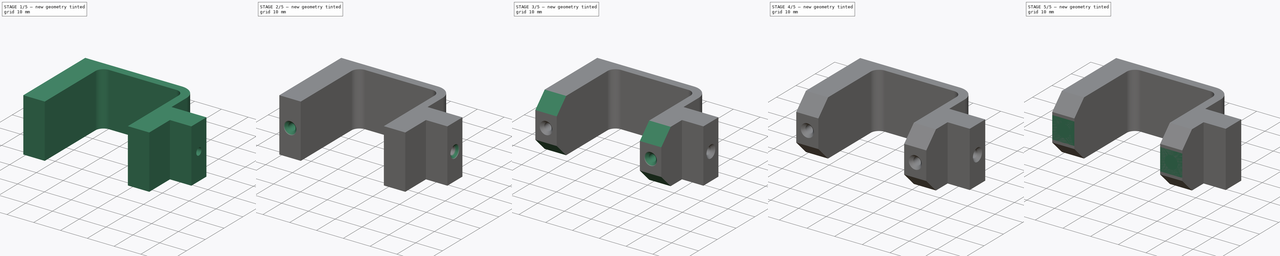
[diagram: build sequence overview — one tinted view per stage of 5, left to right]
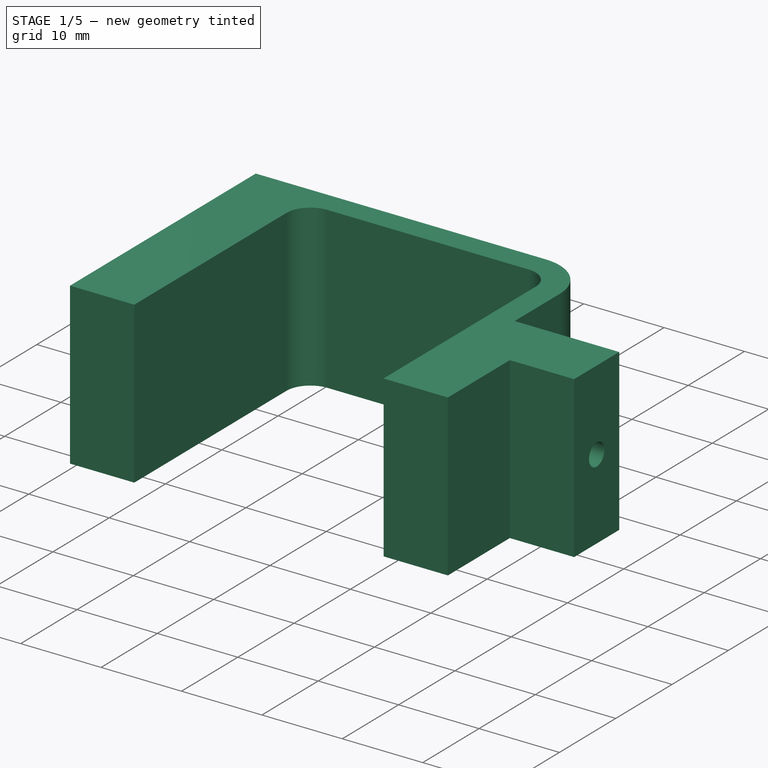
[diagram: stage 1 of 5 — iso view after this stage's code; geometry added in this stage tinted green]
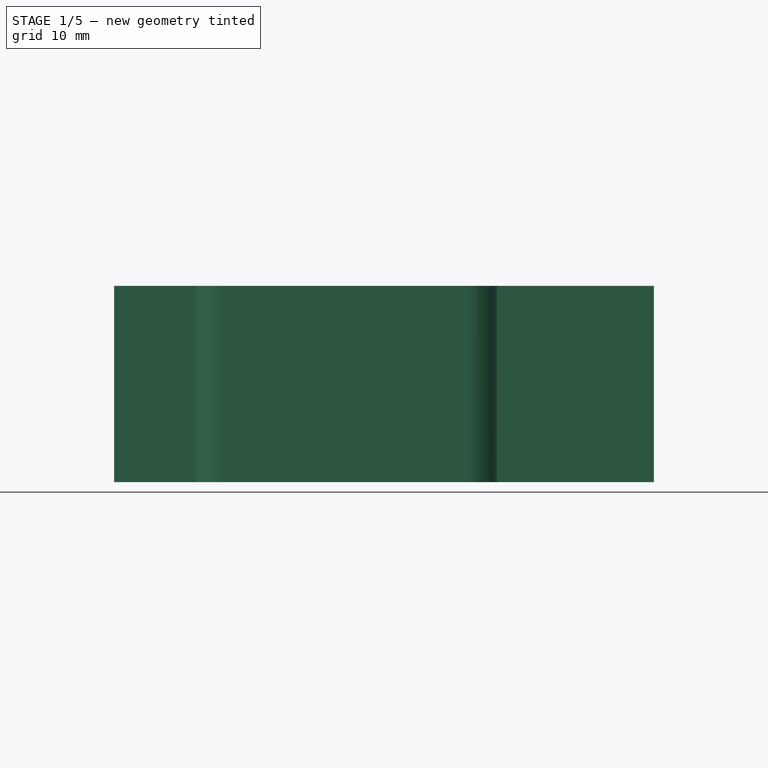
[diagram: stage 1 of 5 — front view after this stage's code; geometry added in this stage tinted green]
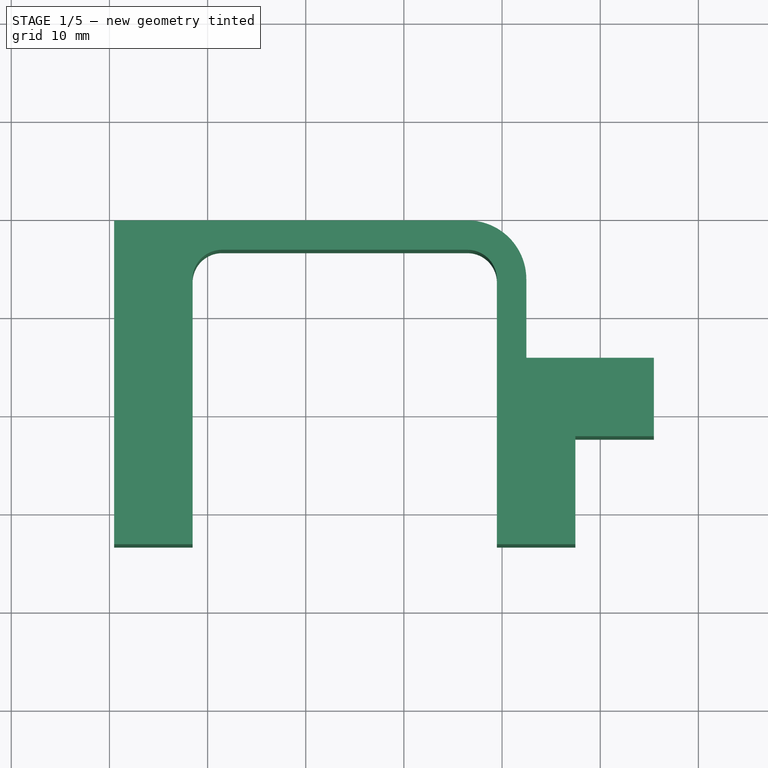
[diagram: stage 1 of 5 — top view after this stage's code; geometry added in this stage tinted green]
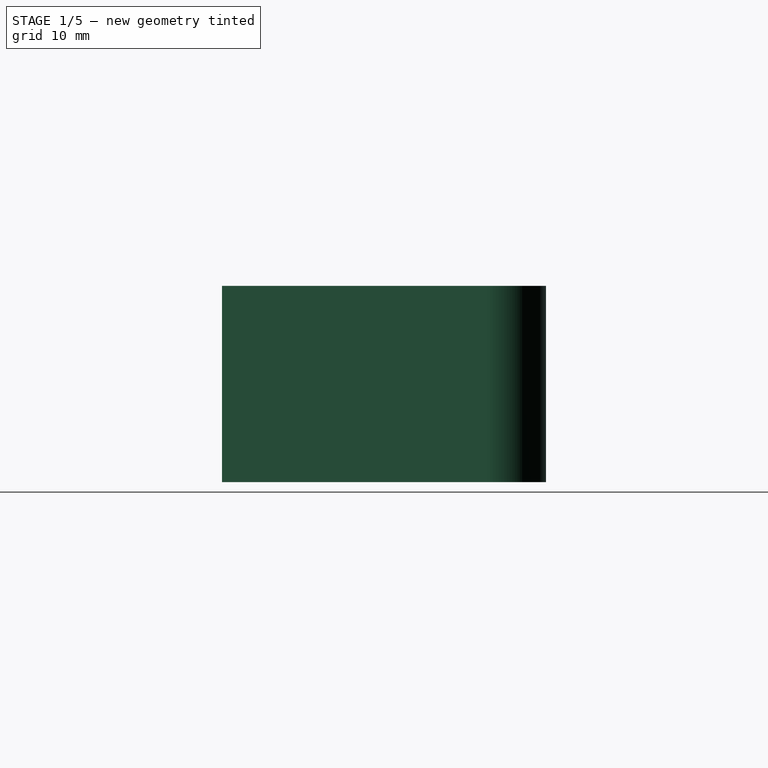
[diagram: stage 1 of 5 — right view after this stage's code; geometry added in this stage tinted green]
FCSTD DOCUMENT  (FreeCAD 0.16R6712 (Git))
Label: portapilas_enganche
License: All rights reserved
LicenseURL: http://en.wikipedia.org/wiki/All_rights_reserved
objects: Sketcher::SketchObject×8, PartDesign::Chamfer×6, PartDesign::Fillet×5, PartDesign::Pocket×5, PartDesign::Pad×2
note: 33 computed .brp shape members not serialized (recipe doc carries the construction recipe); baked Part::Feature solids carry a one-line shape summary decoded from their .brp

FEATURE [Sketcher::SketchObject] Sketch  label="boceto_principal"
  sketch-geometry (12):
    g0: LineSegment StartX=-19.5286 StartY=-13.3495 StartZ=0 EndX=-19.5286 EndY=19.6505 EndZ=0
    g1: LineSegment StartX=-19.5286 StartY=19.6505 StartZ=0 EndX=22.4714 EndY=19.6505 EndZ=0
    g2: LineSegment StartX=22.4714 StartY=19.6505 StartZ=0 EndX=22.4714 EndY=5.65051 EndZ=0
    g3: LineSegment StartX=22.4714 StartY=5.65051 StartZ=0 EndX=35.4714 EndY=5.65051 EndZ=0
    g4: LineSegment StartX=35.4714 StartY=5.65051 StartZ=0 EndX=35.4714 EndY=-2.34949 EndZ=0
    g5: LineSegment StartX=35.4714 StartY=-2.34949 StartZ=0 EndX=27.4714 EndY=-2.34949 EndZ=0
    g6: LineSegment StartX=27.4714 StartY=-2.34949 StartZ=0 EndX=27.4714 EndY=-13.3495 EndZ=0
    g7: LineSegment StartX=27.4714 StartY=-13.3495 StartZ=0 EndX=19.4714 EndY=-13.3495 EndZ=0
    g8: LineSegment StartX=19.4714 StartY=-13.3495 StartZ=0 EndX=19.4714 EndY=16.6505 EndZ=0
    g9: LineSegment StartX=-19.5286 StartY=-13.3495 StartZ=0 EndX=-11.5286 EndY=-13.3495 EndZ=0
    g10: LineSegment StartX=-11.5286 StartY=-13.3495 StartZ=0 EndX=-11.5286 EndY=16.6505 EndZ=0
    g11: LineSegment StartX=-11.5286 StartY=16.6505 StartZ=0 EndX=19.4714 EndY=16.6505 EndZ=0
  constraints (35):
    c: Vertical(g0)
    c: Coincident(g0,g1)
    c: Horizontal(g1)
    c: Coincident(g1,g2)
    c: Vertical(g2)
    c: Coincident(g2,g3)
    c: Horizontal(g3)
    c: Coincident(g3,g4)
    c: Vertical(g4)
    c: Coincident(g4,g5)
    c: Horizontal(g5)
    c: Coincident(g5,g6)
    c: Vertical(g6)
    c: DistanceY(g0,g0) = 33
    c: DistanceX(g1,g1) = 42
    c: DistanceY(g2,g2) = 14
    c: DistanceX(g3,g3) = 13
    c: DistanceY(g4,g4) = 8
    c: DistanceX(g5,g5) = 8
    c: DistanceY(g6,g6) = 11
    c: Horizontal(g7)
    c: DistanceX(g7,g7) = 8
    c: Coincident(g7,g6)
    c: Vertical(g8)
    c: DistanceY(g8,g8) = 30
    c: Coincident(g8,g7)
    c: Horizontal(g9)
    c: DistanceX(g9,g9) = 8
    c: Coincident(g9,g0)
    c: Vertical(g10)
    c: DistanceY(g10,g10) = 30
    c: Coincident(g10,g9)
    c: Horizontal(g11)
    c: DistanceX(g11,g11) = 31
    c: Coincident(g11,g10)
FEATURE [PartDesign::Pad] Pad
  Length = 20
  Length2 = 100
  Sketch = -> Sketch
  Type = 0
FEATURE [PartDesign::Fillet] Fillet
  Base = -> Pad [Edge29,Edge26]
  Radius = 3
FEATURE [PartDesign::Fillet] Fillet001
  Base = -> Fillet [Edge42]
  Radius = 6
FEATURE [Sketcher::SketchObject] Sketch001
  Placement = pos=(0,-13.3495,0) rot=(1,0,0;1.5708rad)
  Support = -> Chamfer [Face17]
  sketch-geometry (2):
    g0: LineSegment [constr] StartX=-19.5094 StartY=13.9117 StartZ=0 EndX=-11.5679 EndY=6.02775 EndZ=0
    g1: Circle CenterX=-16.4594 CenterY=9.59567 CenterZ=0 NormalX=0 NormalY=0 NormalZ=1 Radius=0.540607
FEATURE [Sketcher::SketchObject] Sketch002
  ExternalGeometry = -> [Fillet001]
  Placement = pos=(35.4714,0,0) rot=(0.57735,0.57735,0.57735;2.0944rad)
  Support = -> Fillet001 [Face6]
  sketch-geometry (1):
    g0: Circle CenterX=1.65051 CenterY=10 CenterZ=0 NormalX=0 NormalY=0 NormalZ=1 Radius=1.36
  constraints (3):
    c: Radius(g0) = 1.36
    c: DistanceY(g0,g-4) = 10
    c: DistanceX(g-4,g0) = 4
FEATURE [PartDesign::Pocket] Pocket
  Length = 4
  Sketch = -> Sketch002
  Type = 0
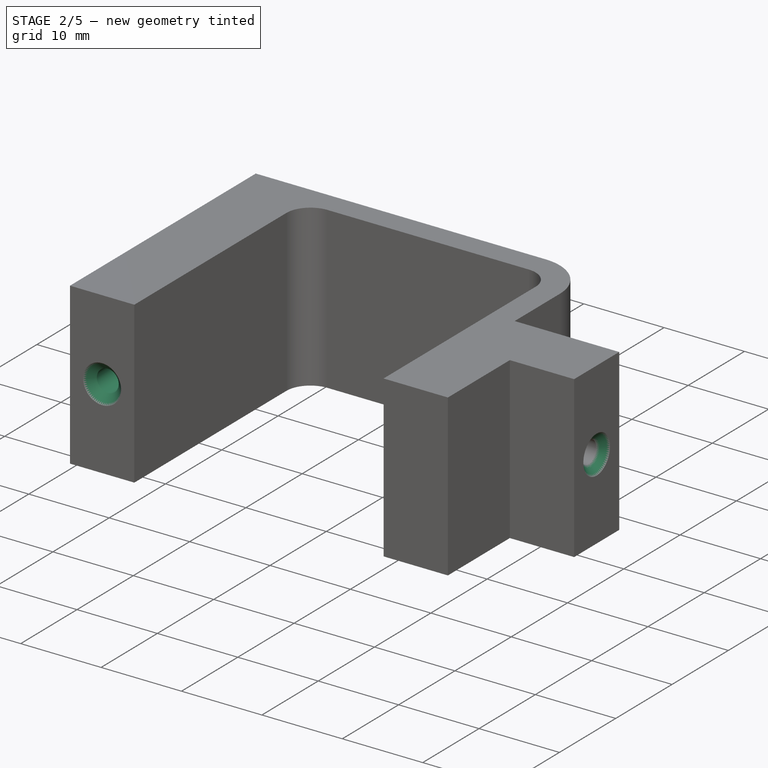
[diagram: stage 2 of 5 — iso view after this stage's code; geometry added in this stage tinted green]
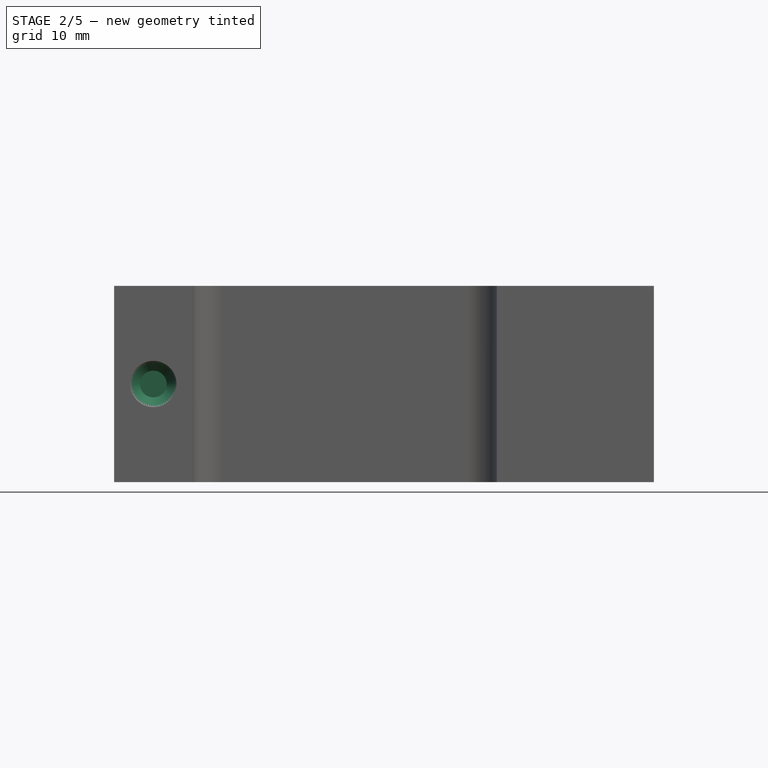
[diagram: stage 2 of 5 — front view after this stage's code; geometry added in this stage tinted green]
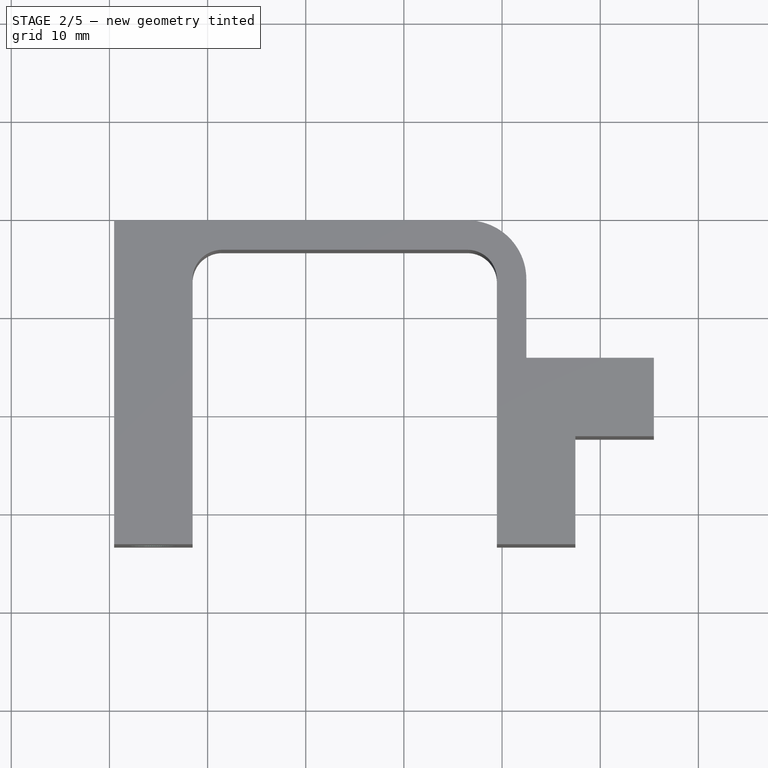
[diagram: stage 2 of 5 — top view after this stage's code; geometry added in this stage tinted green]
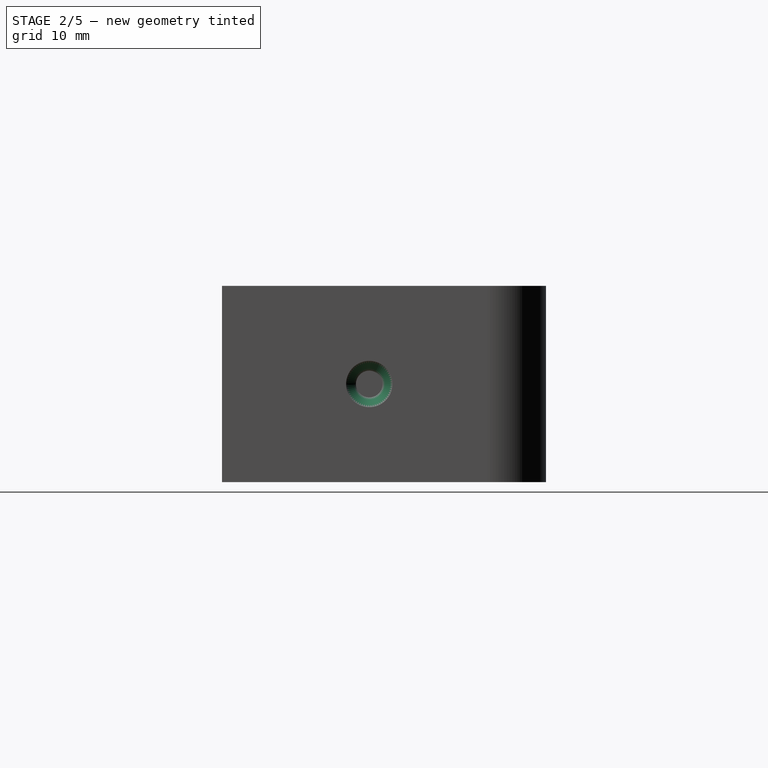
[diagram: stage 2 of 5 — right view after this stage's code; geometry added in this stage tinted green]
FEATURE [PartDesign::Chamfer] Chamfer001
  Base = -> Pocket [Edge27]
  Size = 1
FEATURE [Sketcher::SketchObject] Sketch003
  ExternalGeometry = -> [Chamfer001]
  Placement = pos=(0,-13.3495,0) rot=(1,0,0;1.5708rad)
  Support = -> Chamfer001 [Face15]
  sketch-geometry (1):
    g0: Circle CenterX=-15.5286 CenterY=10 CenterZ=0 NormalX=0 NormalY=0 NormalZ=1 Radius=1.36
  constraints (3):
    c: Radius(g0) = 1.36
    c: DistanceY(g0,g-4) = 10
    c: DistanceX(g-4,g0) = 4
FEATURE [PartDesign::Pocket] Pocket001
  Length = 4
  Sketch = -> Sketch003
  Type = 0
FEATURE [PartDesign::Chamfer] Chamfer002
  Base = -> Pocket001 [Edge45]
  Size = 1
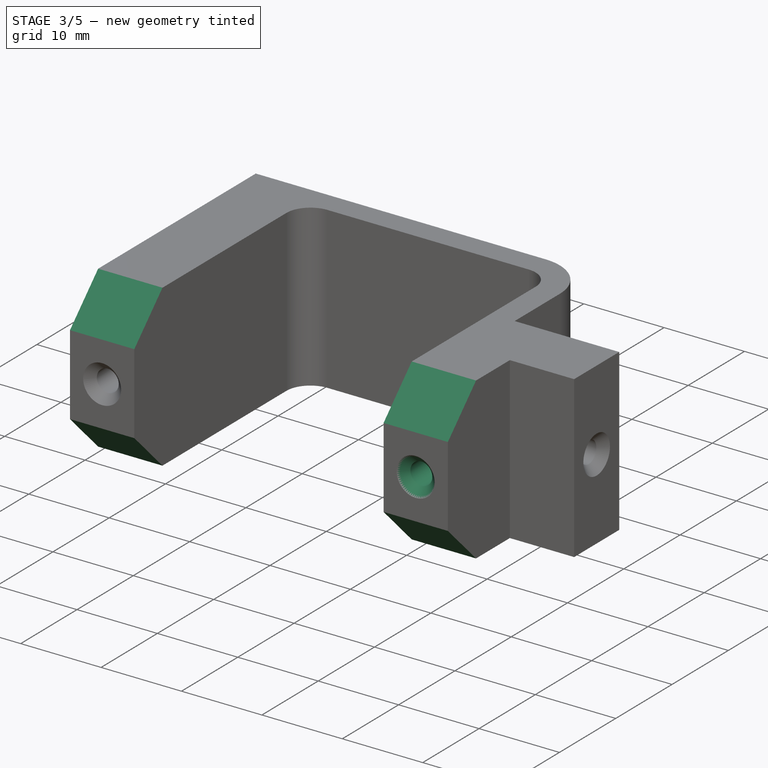
[diagram: stage 3 of 5 — iso view after this stage's code; geometry added in this stage tinted green]
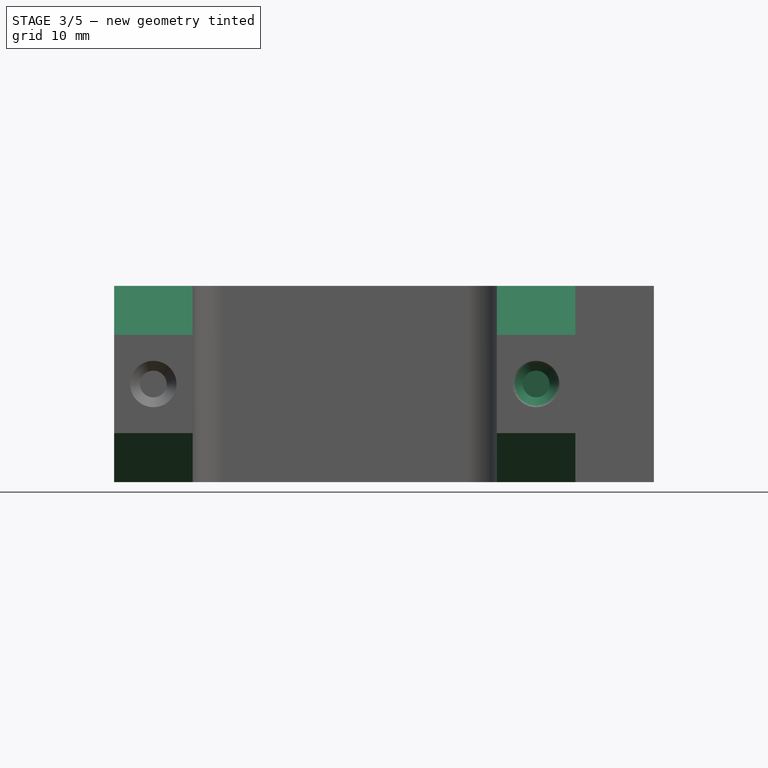
[diagram: stage 3 of 5 — front view after this stage's code; geometry added in this stage tinted green]
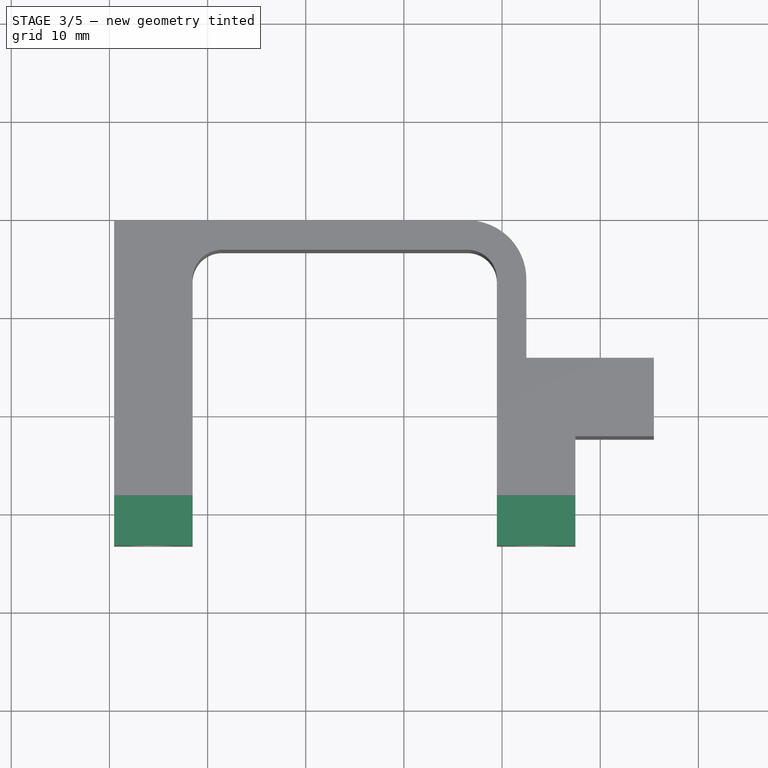
[diagram: stage 3 of 5 — top view after this stage's code; geometry added in this stage tinted green]
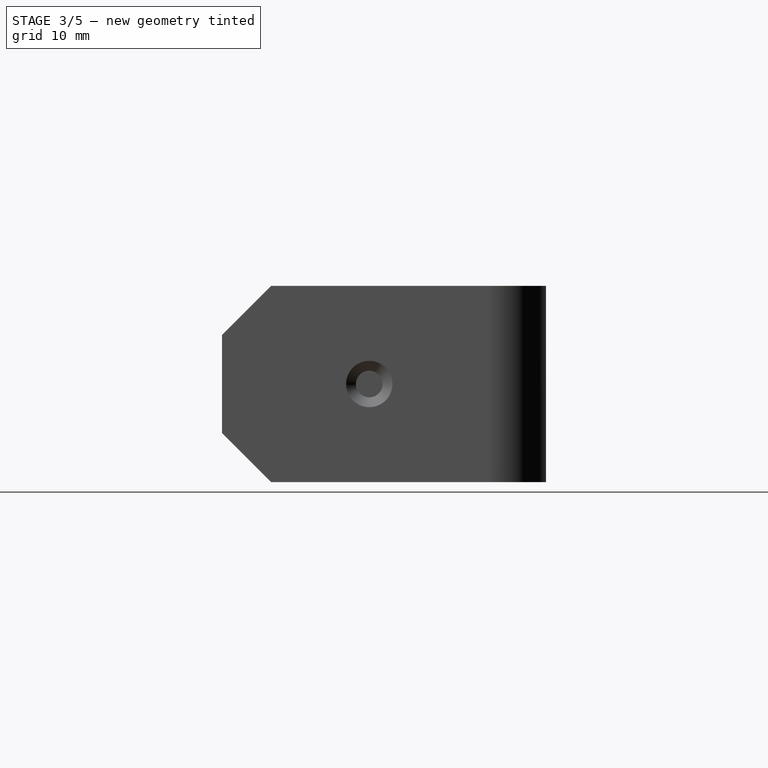
[diagram: stage 3 of 5 — right view after this stage's code; geometry added in this stage tinted green]
FEATURE [Sketcher::SketchObject] Sketch004
  ExternalGeometry = -> [Chamfer002]
  Placement = pos=(0,-13.3495,0) rot=(1,0,0;1.5708rad)
  Support = -> Chamfer002 [Face15]
  sketch-geometry (1):
    g0: Circle CenterX=23.4714 CenterY=10 CenterZ=0 NormalX=0 NormalY=0 NormalZ=1 Radius=1.36
  constraints (3):
    c: Radius(g0) = 1.36
    c: DistanceY(g0,g-4) = 10
    c: DistanceX(g-4,g0) = 4
FEATURE [PartDesign::Pocket] Pocket002
  Length = 4
  Sketch = -> Sketch004
  Type = 0
FEATURE [PartDesign::Chamfer] Chamfer003
  Base = -> Pocket002 [Edge49]
  Size = 1
FEATURE [PartDesign::Chamfer] Chamfer004
  Base = -> Chamfer003 [Edge31,Edge18,Edge4,Edge3]
  Size = 5
FEATURE [Sketcher::SketchObject] Sketch005
  ExternalGeometry = -> [Chamfer004]
  Placement = pos=(0,19.6505,0) rot=(0,0.707107,0.707107;3.14159rad)
  Support = -> Chamfer004 [Face14]
  sketch-geometry (1):
    g0: Circle CenterX=15.5286 CenterY=10 CenterZ=0 NormalX=0 NormalY=0 NormalZ=1 Radius=1.36
  constraints (3):
    c: Radius(g0) = 1.36
    c: DistanceX(g0,g-4) = 4
    c: DistanceY(g0,g-4) = 10
FEATURE [PartDesign::Pocket] Pocket003
  Length = 4
  Sketch = -> Sketch005
  Type = 0
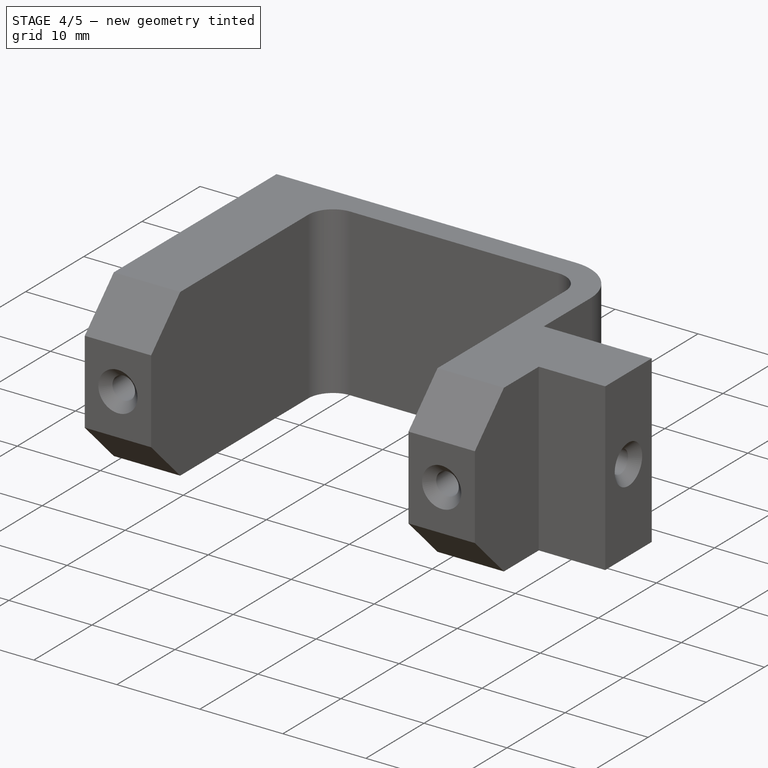
[diagram: stage 4 of 5 — iso view after this stage's code; geometry added in this stage tinted green]
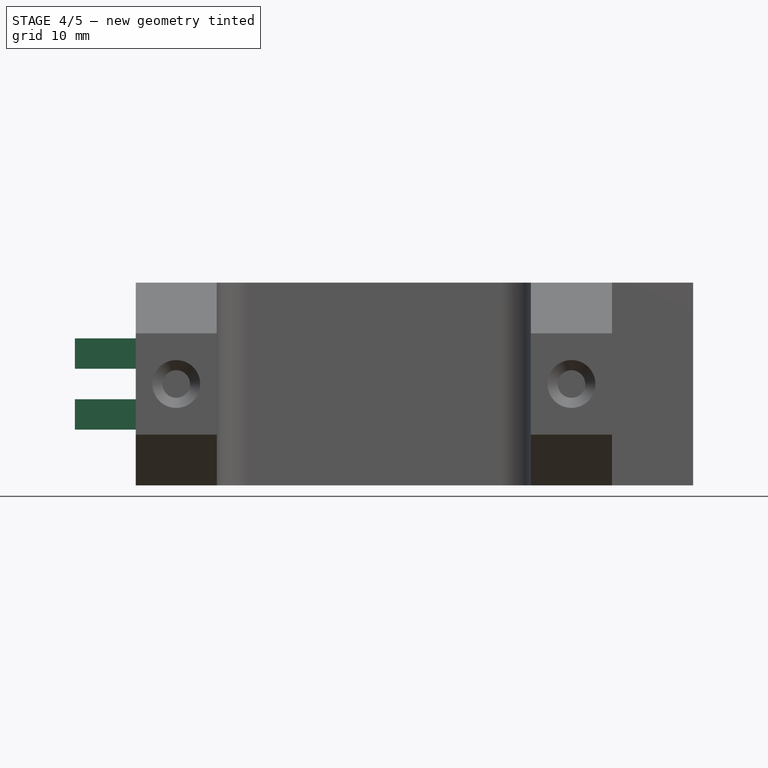
[diagram: stage 4 of 5 — front view after this stage's code; geometry added in this stage tinted green]
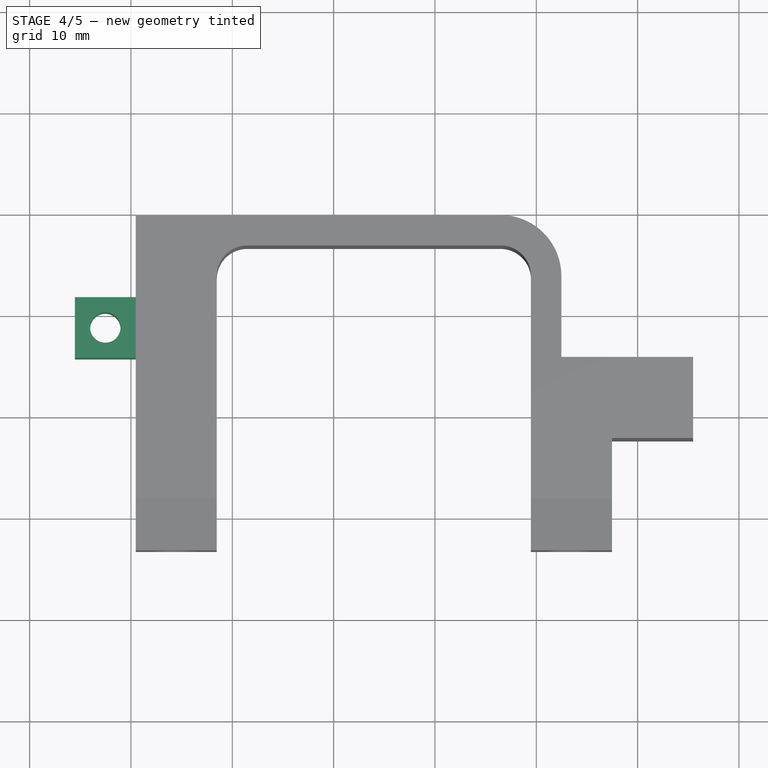
[diagram: stage 4 of 5 — top view after this stage's code; geometry added in this stage tinted green]
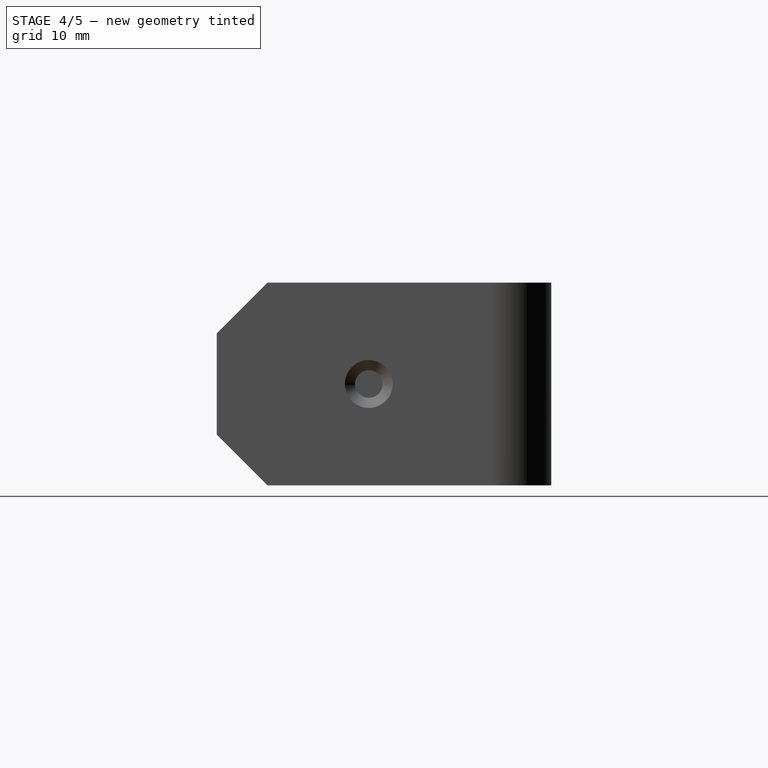
[diagram: stage 4 of 5 — right view after this stage's code; geometry added in this stage tinted green]
FEATURE [PartDesign::Chamfer] Chamfer005
  Base = -> Pocket003 [Edge55]
  Size = 1
FEATURE [Sketcher::SketchObject] Sketch006
  ExternalGeometry = -> [Chamfer005]
  Placement = pos=(-19.5286,0,0) rot=(0.57735,-0.57735,-0.57735;2.0944rad)
  Support = -> Chamfer005 [Face5]
  sketch-geometry (8):
    g0: LineSegment StartX=-11.6505 StartY=14.5 StartZ=0 EndX=-5.65051 EndY=14.5 EndZ=0
    g1: LineSegment StartX=-5.65051 StartY=14.5 StartZ=0 EndX=-5.65051 EndY=11.5 EndZ=0
    g2: LineSegment StartX=-5.65051 StartY=11.5 StartZ=0 EndX=-11.6505 EndY=11.5 EndZ=0
    g3: LineSegment StartX=-11.6505 StartY=11.5 StartZ=0 EndX=-11.6505 EndY=14.5 EndZ=0
    g4: LineSegment StartX=-11.6505 StartY=8.5 StartZ=0 EndX=-5.65051 EndY=8.5 EndZ=0
    g5: LineSegment StartX=-5.65051 StartY=8.5 StartZ=0 EndX=-5.65051 EndY=5.5 EndZ=0
    g6: LineSegment StartX=-5.65051 StartY=5.5 StartZ=0 EndX=-11.6505 EndY=5.5 EndZ=0
    g7: LineSegment StartX=-11.6505 StartY=5.5 StartZ=0 EndX=-11.6505 EndY=8.5 EndZ=0
  constraints (24):
    c: Coincident(g0,g1)
    c: Coincident(g1,g2)
    c: Coincident(g2,g3)
    c: Coincident(g3,g0)
    c: Horizontal(g0)
    c: Horizontal(g2)
    c: Vertical(g1)
    c: Vertical(g3)
    c: Coincident(g4,g5)
    c: Coincident(g5,g6)
    c: Coincident(g6,g7)
    c: Coincident(g7,g4)
    c: Horizontal(g4)
    c: Horizontal(g6)
    c: Vertical(g5)
    c: Vertical(g7)
    c: DistanceX(g0,g0) = 6
    c: DistanceY(g1,g1) = 3
    c: DistanceX(g4,g4) = 6
    c: DistanceY(g5,g5) = 3
    c: DistanceX(g-4,g0) = 8
    c: DistanceY(g0,g-4) = 5.5
    c: DistanceX(g-4,g6) = 8
    c: DistanceY(g-4,g6) = 5.5
FEATURE [PartDesign::Pad] Pad001
  Length = 6
  Length2 = 100
  Sketch = -> Sketch006
  Type = 0
FEATURE [Sketcher::SketchObject] Sketch007
  ExternalGeometry = -> [Pad001]
  Placement = pos=(0,0,14.5) rot=(0,0,1;0rad)
  Support = -> Pad001 [Face27]
  sketch-geometry (1):
    g0: Circle CenterX=-22.5286 CenterY=8.65051 CenterZ=0 NormalX=0 NormalY=0 NormalZ=1 Radius=1.5
  constraints (3):
    c: Radius(g0) = 1.5
    c: DistanceY(g0,g-4) = 3
    c: DistanceX(g-4,g0) = 3
FEATURE [PartDesign::Pocket] Pocket004
  Length = 5
  Sketch = -> Sketch007
  Type = 1
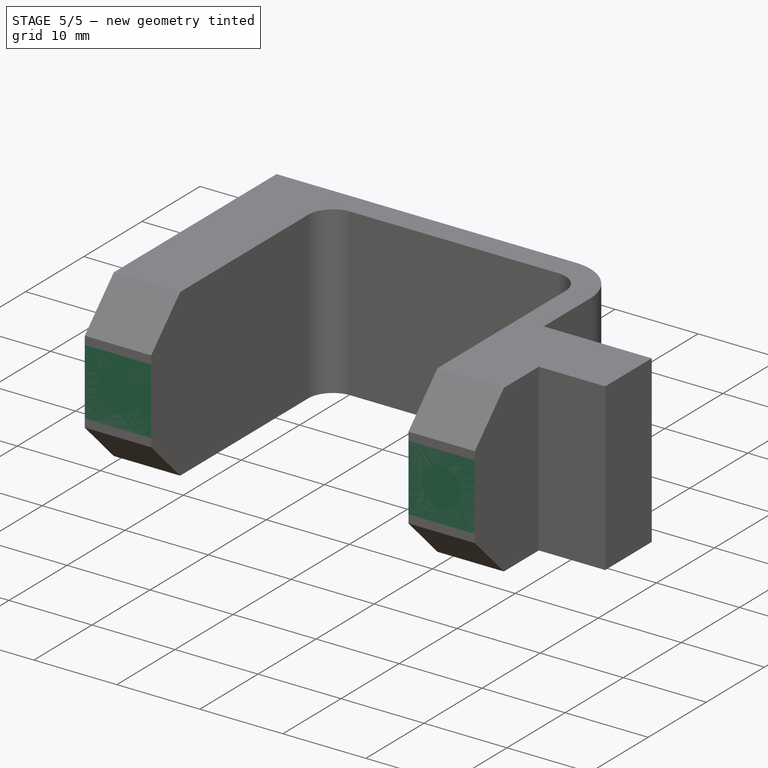
[diagram: stage 5 of 5 — iso view after this stage's code; geometry added in this stage tinted green]
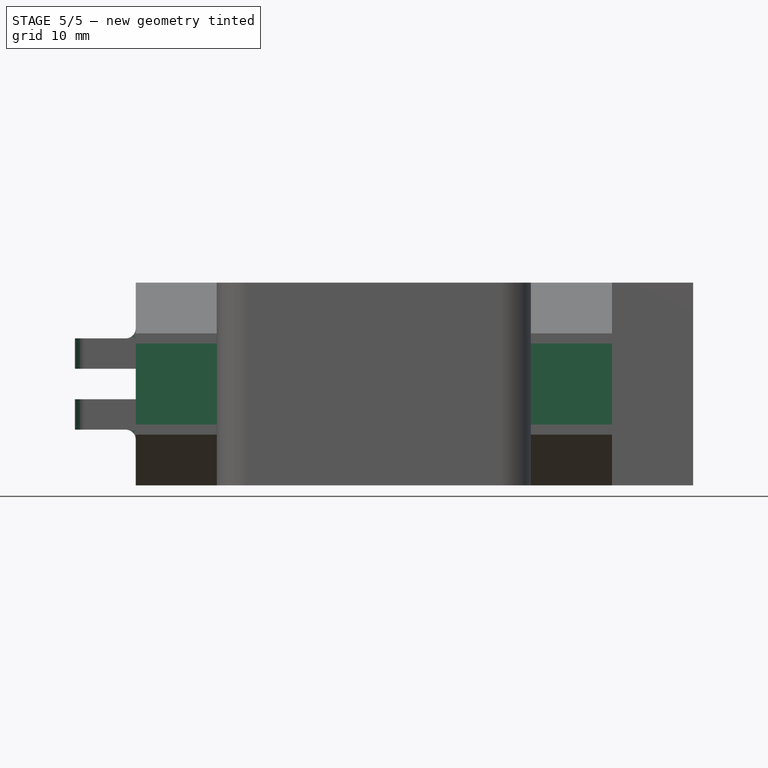
[diagram: stage 5 of 5 — front view after this stage's code; geometry added in this stage tinted green]
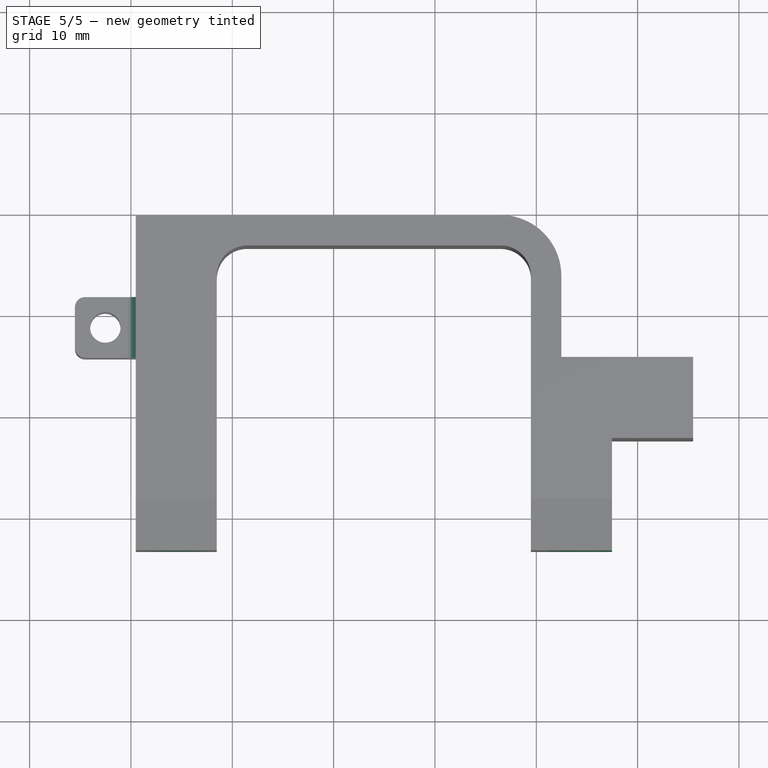
[diagram: stage 5 of 5 — top view after this stage's code; geometry added in this stage tinted green]
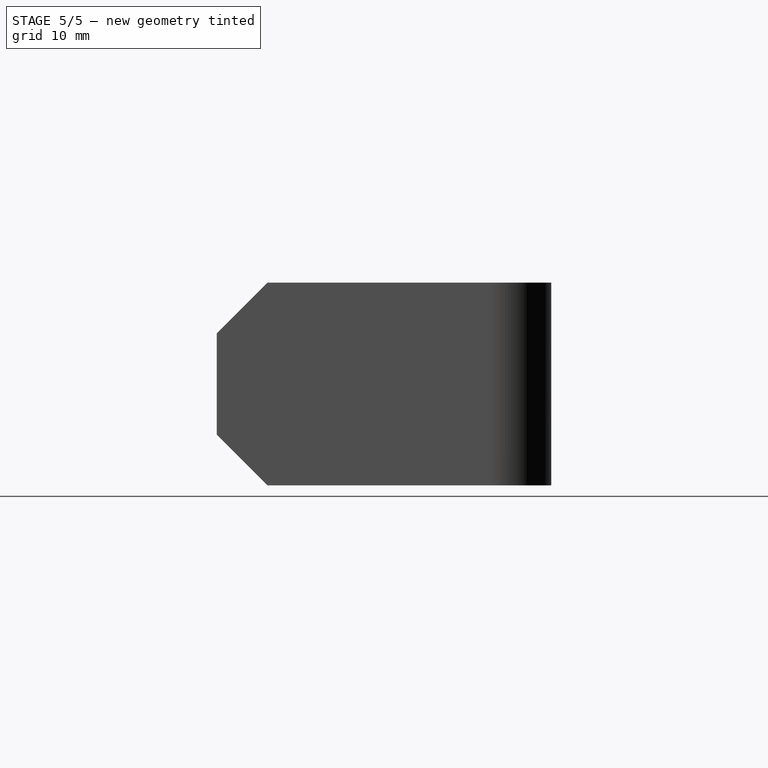
[diagram: stage 5 of 5 — right view after this stage's code; geometry added in this stage tinted green]
FEATURE [PartDesign::Chamfer] Chamfer
  Base = -> Fillet001 [Edge32,Edge8,Edge38,Edge11]
  Size = 6
FEATURE [PartDesign::Fillet] Fillet002
  Base = -> Pocket004 [Edge29,Edge33]
  Radius = 1
FEATURE [PartDesign::Fillet] Fillet003
  Base = -> Fillet002 [Edge29,Edge68,Edge21,Edge76]
  Radius = 1
FEATURE [PartDesign::Fillet] Fillet004  label="definitiva"
  Base = -> Fillet003 [Edge29]
  Radius = 1
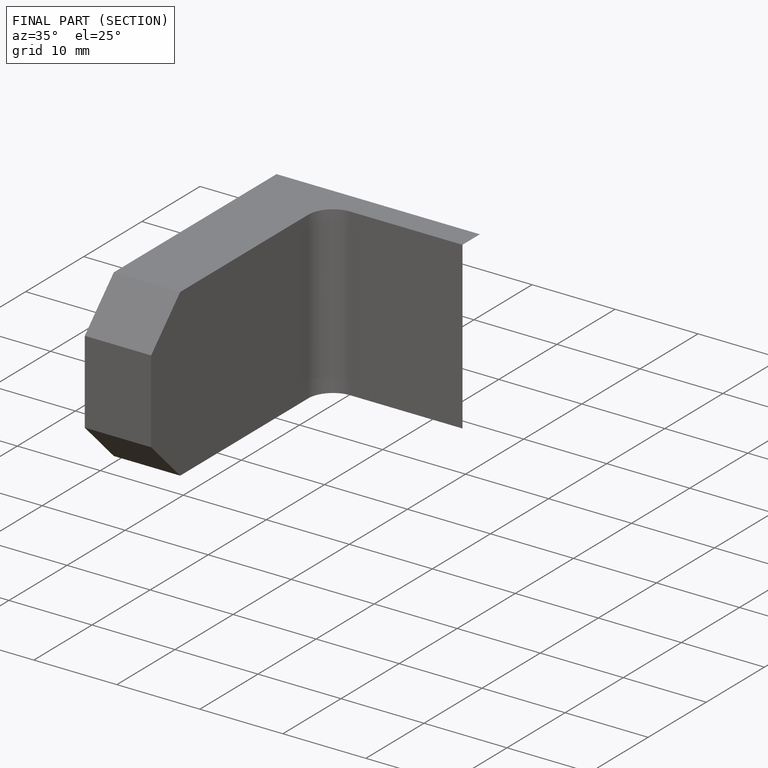
[diagram: finished part — half-section view (interior)]
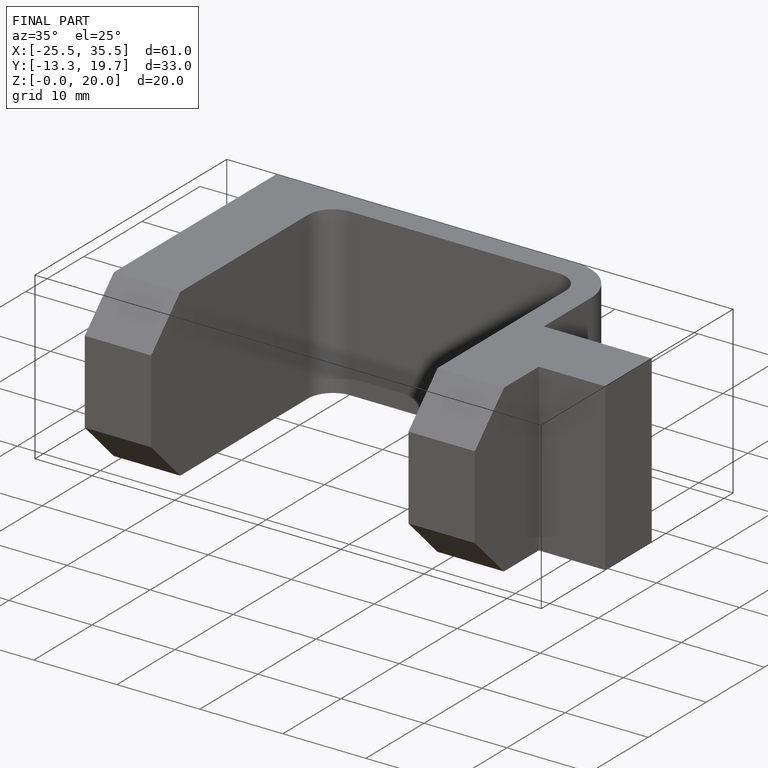
[diagram: finished part — iso view with bounding-box wireframe]
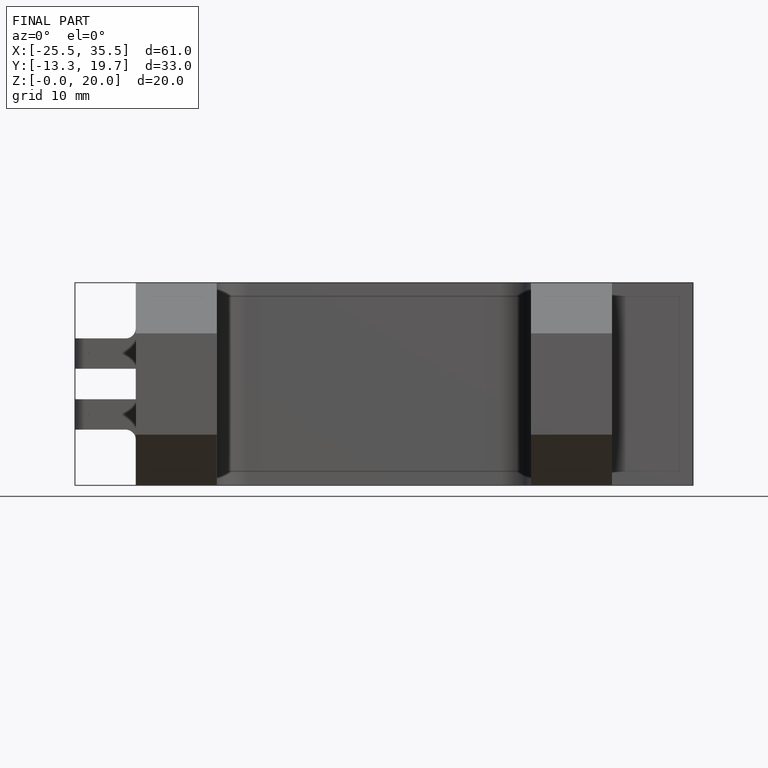
[diagram: finished part — front view with bounding-box wireframe]
